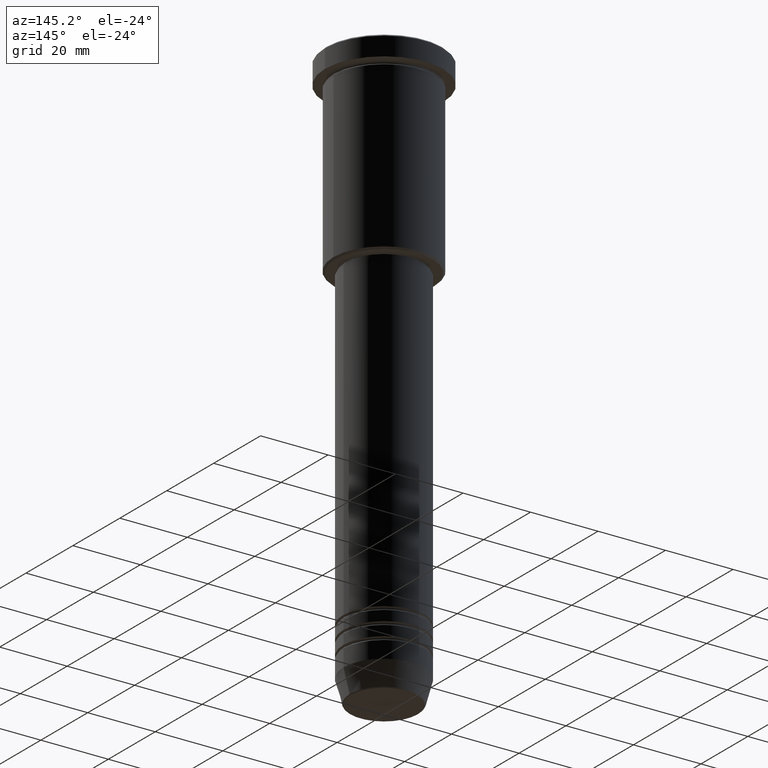
[diagram: clean part render]
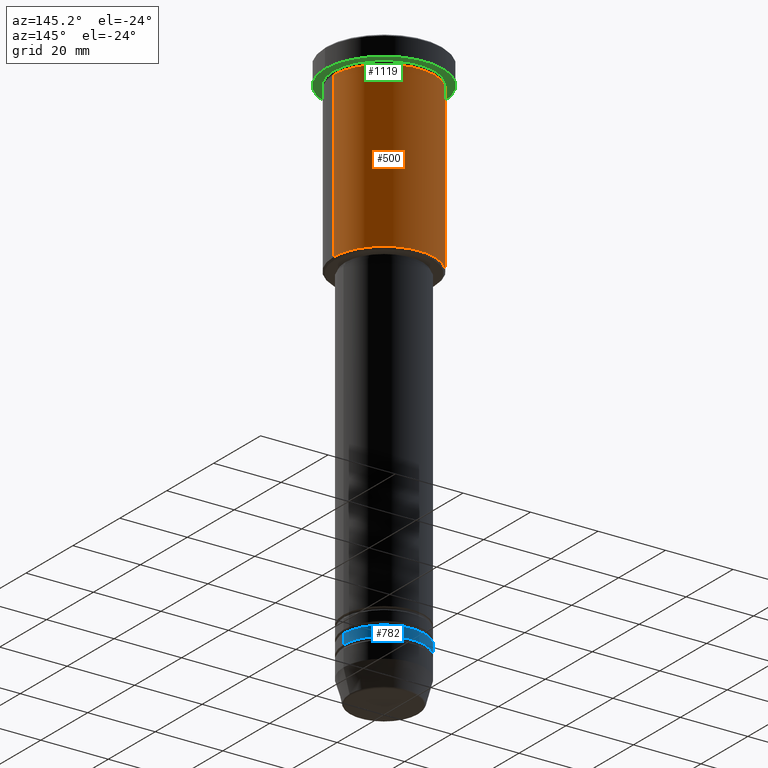
[diagram: same view with three faces highlighted in distinct colors, each labeled with its STEP entity id]
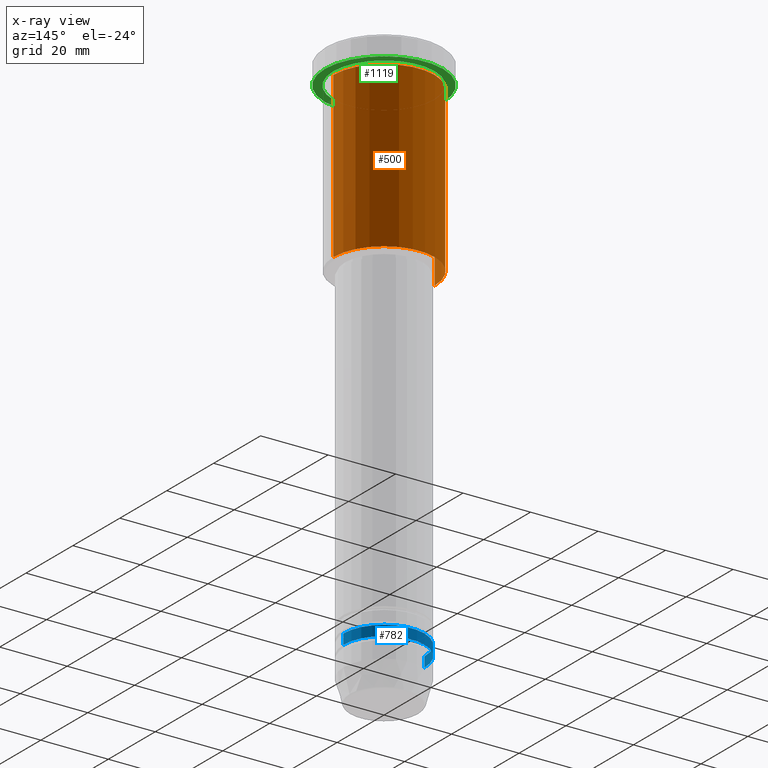
[diagram: x-ray of the same camera — body ghosted, the three highlighted faces saturated]
A machine part, auxiliary view with three faces highlighted in distinct colors.
The next image is the same camera in x-ray (body ghosted, the three faces saturated) — at least one of them is partly hidden behind the body in this view.
Their STEP definitions:

[orange] entity #500 — the highlighted cylindrical surface (partial cylindrical patch) has radius 15 mm, axis along (-0, -0, 1).
#11 = EDGE_CURVE ( 'NONE', #174, #952, #1031, .T. ) ;
#55 = CYLINDRICAL_SURFACE ( 'NONE', #244, 15.00000000000000000 ) ;
#81 = DIRECTION ( 'NONE',  ( -0.000000000000000000, -0.000000000000000000, 1.000000000000000000 ) ) ;
#136 = VERTEX_POINT ( 'NONE', #686 ) ;
#138 = CARTESIAN_POINT ( 'NONE',  ( 15.00000000000000000, 0.000000000000000000, -55.49999999999999289 ) ) ;
#174 = VERTEX_POINT ( 'NONE', #138 ) ;
#244 = AXIS2_PLACEMENT_3D ( 'NONE', #418, #946, #1129 ) ;
#259 = DIRECTION ( 'NONE',  ( 1.000000000000000000, 0.000000000000000000, 0.000000000000000000 ) ) ;
#282 = EDGE_CURVE ( 'NONE', #952, #136, #514, .T. ) ;
#304 = AXIS2_PLACEMENT_3D ( 'NONE', #606, #970, #259 ) ;
#324 = VECTOR ( 'NONE', #515, 1000.000000000000000 ) ;
#394 = VECTOR ( 'NONE', #81, 1000.000000000000000 ) ;
#395 = VERTEX_POINT ( 'NONE', #1148 ) ;
#418 = CARTESIAN_POINT ( 'NONE',  ( 0.000000000000000000, 0.000000000000000000, 0.000000000000000000 ) ) ;
#500 = ADVANCED_FACE ( 'NONE', ( #768 ), #55, .T. ) ;
#514 = LINE ( 'NONE', #894, #394 ) ;
#515 = DIRECTION ( 'NONE',  ( -0.000000000000000000, -0.000000000000000000, 1.000000000000000000 ) ) ;
#539 = ORIENTED_EDGE ( 'NONE', *, *, #582, .F. ) ;
#557 = EDGE_LOOP ( 'NONE', ( #736, #912, #539, #750 ) ) ;
#582 = EDGE_CURVE ( 'NONE', #395, #136, #866, .T. ) ;
#606 = CARTESIAN_POINT ( 'NONE',  ( 0.000000000000000000, 0.000000000000000000, -6.999999999999995559 ) ) ;
#644 = DIRECTION ( 'NONE',  ( -0.000000000000000000, -0.000000000000000000, 1.000000000000000000 ) ) ;
#686 = CARTESIAN_POINT ( 'NONE',  ( -15.00000000000000000, 1.836970198721029589E-15, -6.999999999999995559 ) ) ;
#724 = LINE ( 'NONE', #901, #324 ) ;
#736 = ORIENTED_EDGE ( 'NONE', *, *, #11, .T. ) ;
#748 = CARTESIAN_POINT ( 'NONE',  ( 0.000000000000000000, 0.000000000000000000, -55.49999999999999289 ) ) ;
#750 = ORIENTED_EDGE ( 'NONE', *, *, #1084, .F. ) ;
#768 = FACE_OUTER_BOUND ( 'NONE', #557, .T. ) ;
#866 = CIRCLE ( 'NONE', #304, 15.00000000000000000 ) ;
#894 = CARTESIAN_POINT ( 'NONE',  ( -15.00000000000000000, 1.836970198721029589E-15, 0.000000000000000000 ) ) ;
#901 = CARTESIAN_POINT ( 'NONE',  ( 15.00000000000000000, 0.000000000000000000, 0.000000000000000000 ) ) ;
#912 = ORIENTED_EDGE ( 'NONE', *, *, #282, .T. ) ;
#946 = DIRECTION ( 'NONE',  ( -0.000000000000000000, -0.000000000000000000, 1.000000000000000000 ) ) ;
#952 = VERTEX_POINT ( 'NONE', #1124 ) ;
#958 = AXIS2_PLACEMENT_3D ( 'NONE', #748, #644, #1012 ) ;
#970 = DIRECTION ( 'NONE',  ( -0.000000000000000000, -0.000000000000000000, 1.000000000000000000 ) ) ;
#1012 = DIRECTION ( 'NONE',  ( -1.000000000000000000, 0.000000000000000000, 0.000000000000000000 ) ) ;
#1031 = CIRCLE ( 'NONE', #958, 15.00000000000000000 ) ;
#1084 = EDGE_CURVE ( 'NONE', #174, #395, #724, .T. ) ;
#1124 = CARTESIAN_POINT ( 'NONE',  ( -15.00000000000000000, 1.836970198721029589E-15, -55.49999999999999289 ) ) ;
#1129 = DIRECTION ( 'NONE',  ( 1.000000000000000000, 0.000000000000000000, 0.000000000000000000 ) ) ;
#1148 = CARTESIAN_POINT ( 'NONE',  ( 15.00000000000000000, 0.000000000000000000, -6.999999999999995559 ) ) ;

[blue] entity #782 — the highlighted cylindrical surface (partial cylindrical patch) has radius 12 mm, axis along (-0, -0, 1).
#41 = DIRECTION ( 'NONE',  ( 1.000000000000000000, 0.000000000000000000, 0.000000000000000000 ) ) ;
#117 = DIRECTION ( 'NONE',  ( 1.000000000000000000, 0.000000000000000000, 0.000000000000000000 ) ) ;
#128 = AXIS2_PLACEMENT_3D ( 'NONE', #135, #766, #1059 ) ;
#135 = CARTESIAN_POINT ( 'NONE',  ( 0.000000000000000000, 0.000000000000000000, -157.9999999999999147 ) ) ;
#140 = LINE ( 'NONE', #1038, #431 ) ;
#171 = CARTESIAN_POINT ( 'NONE',  ( 12.00000000000000000, 0.000000000000000000, -154.9999999999999147 ) ) ;
#185 = CIRCLE ( 'NONE', #1014, 12.00000000000000000 ) ;
#189 = CARTESIAN_POINT ( 'NONE',  ( 0.000000000000000000, 0.000000000000000000, 0.000000000000000000 ) ) ;
#213 = CYLINDRICAL_SURFACE ( 'NONE', #224, 12.00000000000000000 ) ;
#224 = AXIS2_PLACEMENT_3D ( 'NONE', #189, #543, #117 ) ;
#227 = CARTESIAN_POINT ( 'NONE',  ( -12.00000000000000000, 1.469576158976823947E-15, 0.000000000000000000 ) ) ;
#233 = VERTEX_POINT ( 'NONE', #855 ) ;
#399 = ORIENTED_EDGE ( 'NONE', *, *, #448, .F. ) ;
#423 = DIRECTION ( 'NONE',  ( -0.000000000000000000, -0.000000000000000000, 1.000000000000000000 ) ) ;
#431 = VECTOR ( 'NONE', #950, 1000.000000000000000 ) ;
#448 = EDGE_CURVE ( 'NONE', #1030, #738, #185, .T. ) ;
#481 = EDGE_CURVE ( 'NONE', #233, #738, #762, .T. ) ;
#543 = DIRECTION ( 'NONE',  ( -0.000000000000000000, -0.000000000000000000, 1.000000000000000000 ) ) ;
#555 = VECTOR ( 'NONE', #423, 1000.000000000000000 ) ;
#565 = CARTESIAN_POINT ( 'NONE',  ( -12.00000000000000000, 1.469576158976823947E-15, -154.9999999999999147 ) ) ;
#567 = ORIENTED_EDGE ( 'NONE', *, *, #1024, .T. ) ;
#584 = CARTESIAN_POINT ( 'NONE',  ( 0.000000000000000000, 0.000000000000000000, -154.9999999999999147 ) ) ;
#620 = CIRCLE ( 'NONE', #128, 12.00000000000000000 ) ;
#738 = VERTEX_POINT ( 'NONE', #565 ) ;
#762 = LINE ( 'NONE', #227, #555 ) ;
#766 = DIRECTION ( 'NONE',  ( -0.000000000000000000, -0.000000000000000000, 1.000000000000000000 ) ) ;
#782 = ADVANCED_FACE ( 'NONE', ( #1099 ), #213, .T. ) ;
#812 = CARTESIAN_POINT ( 'NONE',  ( 12.00000000000000000, 0.000000000000000000, -157.9999999999999147 ) ) ;
#855 = CARTESIAN_POINT ( 'NONE',  ( -12.00000000000000000, 1.469576158976823947E-15, -157.9999999999999147 ) ) ;
#875 = EDGE_CURVE ( 'NONE', #1113, #1030, #140, .T. ) ;
#933 = EDGE_LOOP ( 'NONE', ( #567, #1144, #399, #1108 ) ) ;
#950 = DIRECTION ( 'NONE',  ( -0.000000000000000000, -0.000000000000000000, 1.000000000000000000 ) ) ;
#951 = DIRECTION ( 'NONE',  ( -0.000000000000000000, -0.000000000000000000, 1.000000000000000000 ) ) ;
#1014 = AXIS2_PLACEMENT_3D ( 'NONE', #584, #951, #41 ) ;
#1024 = EDGE_CURVE ( 'NONE', #1113, #233, #620, .T. ) ;
#1030 = VERTEX_POINT ( 'NONE', #171 ) ;
#1038 = CARTESIAN_POINT ( 'NONE',  ( 12.00000000000000000, 0.000000000000000000, 0.000000000000000000 ) ) ;
#1059 = DIRECTION ( 'NONE',  ( 1.000000000000000000, 0.000000000000000000, 0.000000000000000000 ) ) ;
#1099 = FACE_OUTER_BOUND ( 'NONE', #933, .T. ) ;
#1108 = ORIENTED_EDGE ( 'NONE', *, *, #875, .F. ) ;
#1113 = VERTEX_POINT ( 'NONE', #812 ) ;
#1144 = ORIENTED_EDGE ( 'NONE', *, *, #481, .T. ) ;

[green] entity #1119 — the highlighted planar face has unit normal (0, 0, -1).
#46 = AXIS2_PLACEMENT_3D ( 'NONE', #568, #1140, #497 ) ;
#69 = CIRCLE ( 'NONE', #735, 15.00000000000000000 ) ;
#83 = CARTESIAN_POINT ( 'NONE',  ( 0.000000000000000000, 0.000000000000000000, -5.999999999999995559 ) ) ;
#92 = DIRECTION ( 'NONE',  ( -0.000000000000000000, -0.000000000000000000, 1.000000000000000000 ) ) ;
#132 = EDGE_CURVE ( 'NONE', #931, #603, #427, .T. ) ;
#156 = VERTEX_POINT ( 'NONE', #1043 ) ;
#169 = AXIS2_PLACEMENT_3D ( 'NONE', #83, #516, #366 ) ;
#177 = CARTESIAN_POINT ( 'NONE',  ( 0.000000000000000000, 17.50000000000000000, -5.999999999999995559 ) ) ;
#223 = CARTESIAN_POINT ( 'NONE',  ( 17.50000000000000000, 0.000000000000000000, -5.999999999999995559 ) ) ;
#230 = CARTESIAN_POINT ( 'NONE',  ( 0.000000000000000000, 0.000000000000000000, -5.999999999999995559 ) ) ;
#257 = DIRECTION ( 'NONE',  ( 0.000000000000000000, 0.000000000000000000, -1.000000000000000000 ) ) ;
#296 = EDGE_LOOP ( 'NONE', ( #1174, #591 ) ) ;
#325 = CARTESIAN_POINT ( 'NONE',  ( 0.000000000000000000, 0.000000000000000000, -5.999999999999995559 ) ) ;
#334 = CARTESIAN_POINT ( 'NONE',  ( 15.00000000000000000, 1.836970198721029589E-15, -5.999999999999994671 ) ) ;
#359 = PLANE ( 'NONE',  #1079 ) ;
#365 = FACE_BOUND ( 'NONE', #296, .T. ) ;
#366 = DIRECTION ( 'NONE',  ( -1.000000000000000000, 0.000000000000000000, 0.000000000000000000 ) ) ;
#427 = CIRCLE ( 'NONE', #46, 17.50000000000000000 ) ;
#435 = FACE_OUTER_BOUND ( 'NONE', #756, .T. ) ;
#442 = VERTEX_POINT ( 'NONE', #334 ) ;
#497 = DIRECTION ( 'NONE',  ( 1.000000000000000000, 0.000000000000000000, 0.000000000000000000 ) ) ;
#502 = CIRCLE ( 'NONE', #169, 15.00000000000000000 ) ;
#508 = EDGE_CURVE ( 'NONE', #442, #156, #69, .T. ) ;
#516 = DIRECTION ( 'NONE',  ( -0.000000000000000000, -0.000000000000000000, 1.000000000000000000 ) ) ;
#568 = CARTESIAN_POINT ( 'NONE',  ( 0.000000000000000000, 0.000000000000000000, -5.999999999999995559 ) ) ;
#589 = DIRECTION ( 'NONE',  ( 1.000000000000000000, 0.000000000000000000, 0.000000000000000000 ) ) ;
#591 = ORIENTED_EDGE ( 'NONE', *, *, #508, .T. ) ;
#603 = VERTEX_POINT ( 'NONE', #1080 ) ;
#715 = DIRECTION ( 'NONE',  ( -1.000000000000000000, 0.000000000000000000, -0.000000000000000000 ) ) ;
#735 = AXIS2_PLACEMENT_3D ( 'NONE', #325, #92, #1168 ) ;
#756 = EDGE_LOOP ( 'NONE', ( #1021, #763 ) ) ;
#763 = ORIENTED_EDGE ( 'NONE', *, *, #870, .F. ) ;
#779 = DIRECTION ( 'NONE',  ( -0.000000000000000000, -0.000000000000000000, 1.000000000000000000 ) ) ;
#870 = EDGE_CURVE ( 'NONE', #603, #931, #942, .T. ) ;
#931 = VERTEX_POINT ( 'NONE', #223 ) ;
#942 = CIRCLE ( 'NONE', #1116, 17.50000000000000000 ) ;
#991 = EDGE_CURVE ( 'NONE', #156, #442, #502, .T. ) ;
#1021 = ORIENTED_EDGE ( 'NONE', *, *, #132, .F. ) ;
#1043 = CARTESIAN_POINT ( 'NONE',  ( -15.00000000000000000, 0.000000000000000000, -5.999999999999994671 ) ) ;
#1079 = AXIS2_PLACEMENT_3D ( 'NONE', #177, #257, #715 ) ;
#1080 = CARTESIAN_POINT ( 'NONE',  ( -17.50000000000000000, 2.143131898507868248E-15, -5.999999999999995559 ) ) ;
#1116 = AXIS2_PLACEMENT_3D ( 'NONE', #230, #779, #589 ) ;
#1119 = ADVANCED_FACE ( 'NONE', ( #365, #435 ), #359, .T. ) ;
#1140 = DIRECTION ( 'NONE',  ( -0.000000000000000000, -0.000000000000000000, 1.000000000000000000 ) ) ;
#1168 = DIRECTION ( 'NONE',  ( -1.000000000000000000, 0.000000000000000000, 0.000000000000000000 ) ) ;
#1174 = ORIENTED_EDGE ( 'NONE', *, *, #991, .T. ) ;